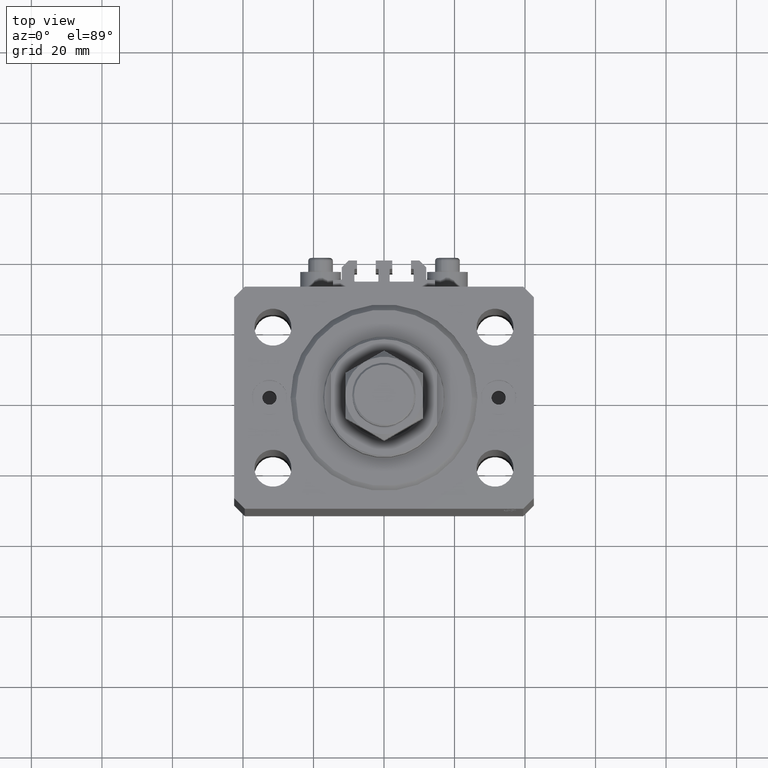
[diagram: clean part render]
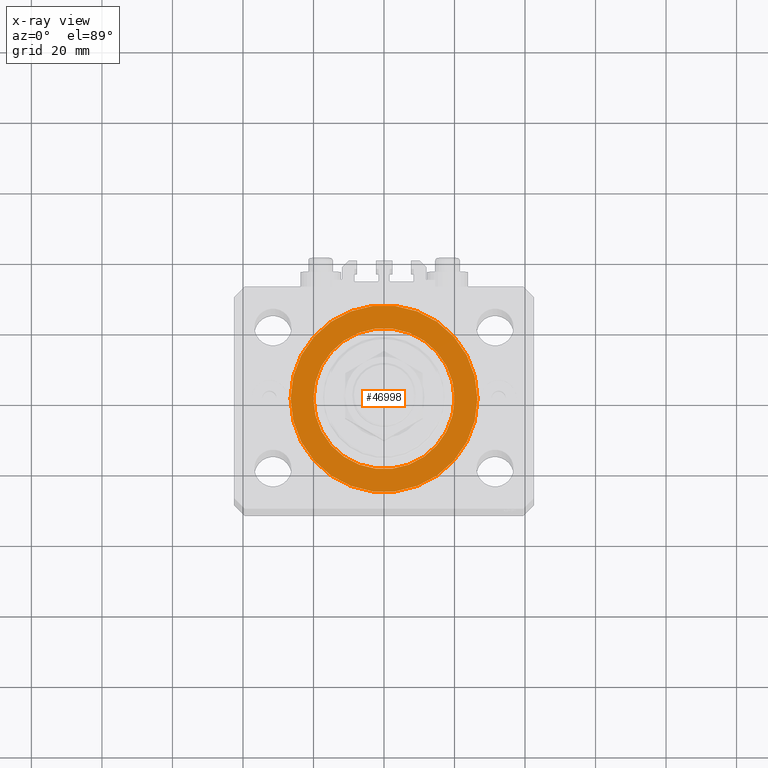
[diagram: x-ray — body ghosted, one internal face saturated and labeled with its STEP entity id]
A machine part, top view, then the same camera in x-ray: the body is ghosted and one INTERNAL B-rep face — a face not visible from any outside direction — is saturated and labeled: STEP entity #46998.
In plain terms, the highlighted planar face has unit normal (0, 0, 1).
Its self-contained STEP definition (entity closure, byte-faithful):
#44 = EDGE_LOOP ( 'NONE', ( #19861, #21469 ) ) ;
#121 = CARTESIAN_POINT ( 'NONE',  ( -26.50000000000000355, 3.245314017740486554E-15, -17.00000000000000000 ) ) ;
#152 = EDGE_LOOP ( 'NONE', ( #12305, #42663 ) ) ;
#3588 = CARTESIAN_POINT ( 'NONE',  ( 0.000000000000000000, 0.000000000000000000, -17.00000000000000000 ) ) ;
#5804 = VERTEX_POINT ( 'NONE', #121 ) ;
#6915 = DIRECTION ( 'NONE',  ( 0.000000000000000000, 0.000000000000000000, 1.000000000000000000 ) ) ;
#7062 = PLANE ( 'NONE',  #48007 ) ;
#7834 = AXIS2_PLACEMENT_3D ( 'NONE', #40677, #29071, #43662 ) ;
#7967 = DIRECTION ( 'NONE',  ( 0.000000000000000000, 0.000000000000000000, 1.000000000000000000 ) ) ;
#9435 = CIRCLE ( 'NONE', #7834, 26.50000000000000355 ) ;
#9753 = EDGE_CURVE ( 'NONE', #5804, #28622, #47247, .T. ) ;
#10009 = EDGE_CURVE ( 'NONE', #10960, #15754, #25942, .T. ) ;
#10899 = EDGE_CURVE ( 'NONE', #28622, #5804, #9435, .T. ) ;
#10960 = VERTEX_POINT ( 'NONE', #47111 ) ;
#12305 = ORIENTED_EDGE ( 'NONE', *, *, #10899, .T. ) ;
#14710 = DIRECTION ( 'NONE',  ( 1.000000000000000000, 0.000000000000000000, -0.000000000000000000 ) ) ;
#15754 = VERTEX_POINT ( 'NONE', #39602 ) ;
#16733 = CARTESIAN_POINT ( 'NONE',  ( 26.50000000000000355, 0.000000000000000000, -17.00000000000000000 ) ) ;
#17190 = CARTESIAN_POINT ( 'NONE',  ( 0.000000000000000000, 0.000000000000000000, -17.00000000000000000 ) ) ;
#19861 = ORIENTED_EDGE ( 'NONE', *, *, #10009, .F. ) ;
#21469 = ORIENTED_EDGE ( 'NONE', *, *, #31980, .F. ) ;
#24103 = CARTESIAN_POINT ( 'NONE',  ( 0.000000000000000000, 0.000000000000000000, -17.00000000000000000 ) ) ;
#25354 = DIRECTION ( 'NONE',  ( 1.000000000000000000, 0.000000000000000000, 0.000000000000000000 ) ) ;
#25363 = FACE_BOUND ( 'NONE', #44, .T. ) ;
#25942 = CIRCLE ( 'NONE', #41750, 20.00000000000000000 ) ;
#26760 = AXIS2_PLACEMENT_3D ( 'NONE', #48193, #6915, #35877 ) ;
#27246 = DIRECTION ( 'NONE',  ( 1.000000000000000000, 0.000000000000000000, 0.000000000000000000 ) ) ;
#28622 = VERTEX_POINT ( 'NONE', #16733 ) ;
#29071 = DIRECTION ( 'NONE',  ( 0.000000000000000000, 0.000000000000000000, 1.000000000000000000 ) ) ;
#31980 = EDGE_CURVE ( 'NONE', #15754, #10960, #40682, .T. ) ;
#33771 = DIRECTION ( 'NONE',  ( 0.000000000000000000, 0.000000000000000000, 1.000000000000000000 ) ) ;
#35877 = DIRECTION ( 'NONE',  ( 1.000000000000000000, 0.000000000000000000, 0.000000000000000000 ) ) ;
#35974 = AXIS2_PLACEMENT_3D ( 'NONE', #24103, #7967, #27246 ) ;
#39602 = CARTESIAN_POINT ( 'NONE',  ( -20.00000000000000000, 2.449293598294706513E-15, -17.00000000000000000 ) ) ;
#40188 = DIRECTION ( 'NONE',  ( 0.000000000000000000, 0.000000000000000000, 1.000000000000000000 ) ) ;
#40677 = CARTESIAN_POINT ( 'NONE',  ( 0.000000000000000000, 0.000000000000000000, -17.00000000000000000 ) ) ;
#40682 = CIRCLE ( 'NONE', #35974, 20.00000000000000000 ) ;
#41750 = AXIS2_PLACEMENT_3D ( 'NONE', #17190, #40188, #25354 ) ;
#42663 = ORIENTED_EDGE ( 'NONE', *, *, #9753, .T. ) ;
#43662 = DIRECTION ( 'NONE',  ( 1.000000000000000000, 0.000000000000000000, 0.000000000000000000 ) ) ;
#44880 = FACE_OUTER_BOUND ( 'NONE', #152, .T. ) ;
#46998 = ADVANCED_FACE ( 'NONE', ( #25363, #44880 ), #7062, .T. ) ;
#47111 = CARTESIAN_POINT ( 'NONE',  ( 20.00000000000000000, 0.000000000000000000, -17.00000000000000000 ) ) ;
#47247 = CIRCLE ( 'NONE', #26760, 26.50000000000000355 ) ;
#48007 = AXIS2_PLACEMENT_3D ( 'NONE', #3588, #33771, #14710 ) ;
#48193 = CARTESIAN_POINT ( 'NONE',  ( 0.000000000000000000, 0.000000000000000000, -17.00000000000000000 ) ) ;